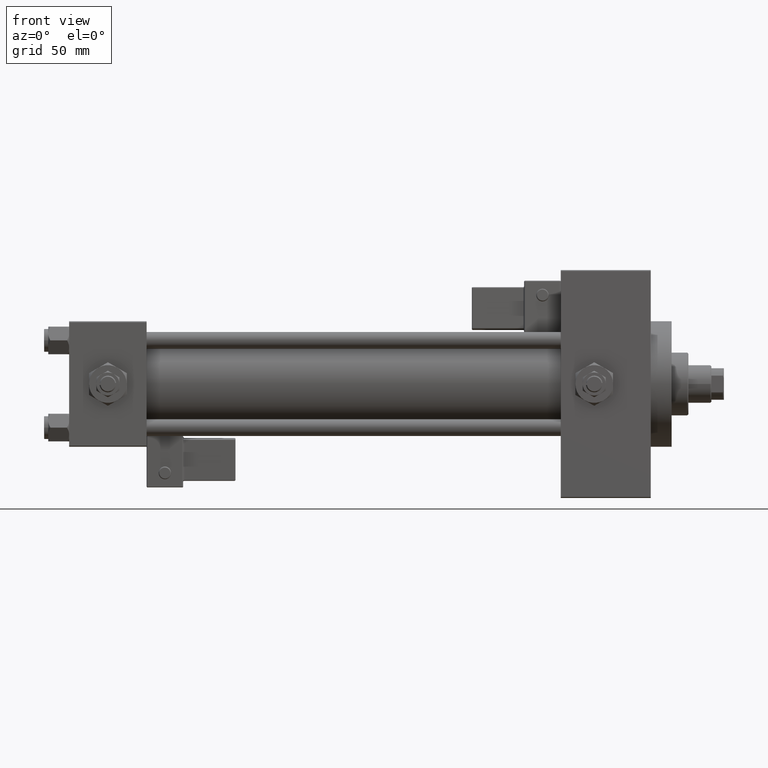
[diagram: clean part render]
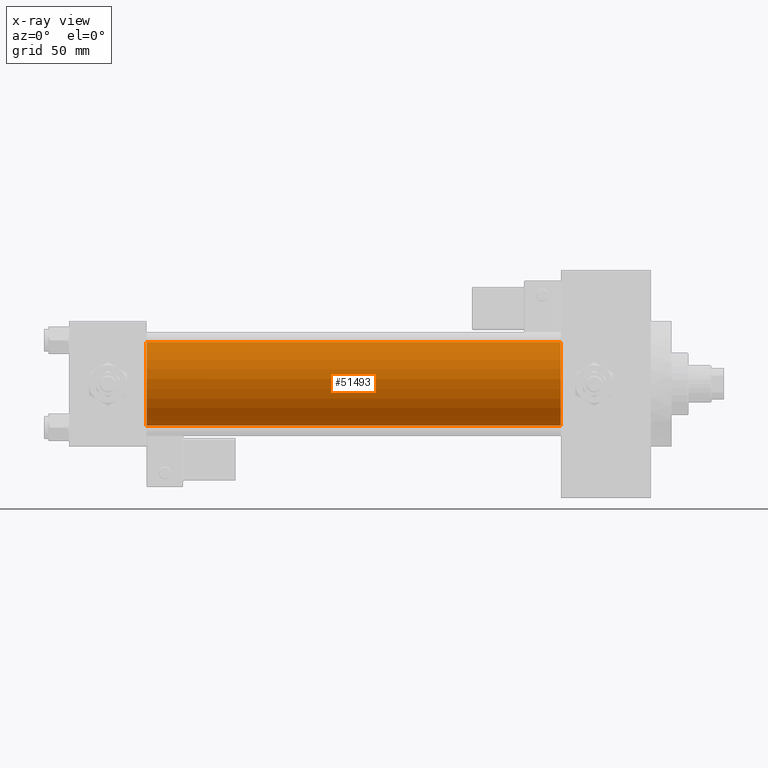
[diagram: x-ray — body ghosted, one internal face saturated and labeled with its STEP entity id]
A machine part, front view, then the same camera in x-ray: the body is ghosted and one INTERNAL B-rep face — a face not visible from any outside direction — is saturated and labeled: STEP entity #51493.
In plain terms, the highlighted cylindrical surface (partial cylindrical patch) has radius 20 mm, axis along (-1, -0, -0).
Its self-contained STEP definition (entity closure, byte-faithful):
#32 = VERTEX_POINT ( 'NONE', #4013 ) ;
#1089 = DIRECTION ( 'NONE',  ( 1.000000000000000000, 0.000000000000000000, 0.000000000000000000 ) ) ;
#1090 = VERTEX_POINT ( 'NONE', #40598 ) ;
#3659 = FACE_OUTER_BOUND ( 'NONE', #30290, .T. ) ;
#4013 = CARTESIAN_POINT ( 'NONE',  ( 235.0000000000000284, -1.527916156705042519E-16, -20.00000000000000000 ) ) ;
#4306 = DIRECTION ( 'NONE',  ( 1.000000000000000000, 0.000000000000000000, 0.000000000000000000 ) ) ;
#6747 = VERTEX_POINT ( 'NONE', #36054 ) ;
#11464 = DIRECTION ( 'NONE',  ( 0.000000000000000000, 0.000000000000000000, 1.000000000000000000 ) ) ;
#13388 = AXIS2_PLACEMENT_3D ( 'NONE', #27844, #16149, #11464 ) ;
#13917 = CIRCLE ( 'NONE', #47138, 20.00000000000000000 ) ;
#14411 = EDGE_CURVE ( 'NONE', #6747, #1090, #14683, .T. ) ;
#14683 = LINE ( 'NONE', #39405, #42393 ) ;
#15228 = VECTOR ( 'NONE', #25204, 1000.000000000000000 ) ;
#16149 = DIRECTION ( 'NONE',  ( -1.000000000000000000, -0.000000000000000000, -0.000000000000000000 ) ) ;
#16549 = CARTESIAN_POINT ( 'NONE',  ( 37.00000000000000000, -2.602085213965210642E-15, 0.000000000000000000 ) ) ;
#18160 = CIRCLE ( 'NONE', #47251, 20.00000000000000000 ) ;
#20869 = CARTESIAN_POINT ( 'NONE',  ( 235.0000000000000284, -2.602085213965210642E-15, 0.000000000000000000 ) ) ;
#21314 = ORIENTED_EDGE ( 'NONE', *, *, #30476, .T. ) ;
#21555 = CARTESIAN_POINT ( 'NONE',  ( 235.0000000000000284, -1.527916156705042519E-16, -20.00000000000000000 ) ) ;
#23581 = DIRECTION ( 'NONE',  ( 0.000000000000000000, 0.000000000000000000, -1.000000000000000000 ) ) ;
#25204 = DIRECTION ( 'NONE',  ( -1.000000000000000000, -0.000000000000000000, -0.000000000000000000 ) ) ;
#25296 = DIRECTION ( 'NONE',  ( 0.000000000000000000, 0.000000000000000000, -1.000000000000000000 ) ) ;
#25734 = CARTESIAN_POINT ( 'NONE',  ( 37.00000000000000000, -1.527916156705042519E-16, -20.00000000000000000 ) ) ;
#27844 = CARTESIAN_POINT ( 'NONE',  ( 235.0000000000000284, -2.602085213965210642E-15, 0.000000000000000000 ) ) ;
#30290 = EDGE_LOOP ( 'NONE', ( #38421, #21314, #38495, #32779 ) ) ;
#30476 = EDGE_CURVE ( 'NONE', #32, #38957, #37161, .T. ) ;
#32779 = ORIENTED_EDGE ( 'NONE', *, *, #14411, .F. ) ;
#36054 = CARTESIAN_POINT ( 'NONE',  ( 235.0000000000000284, -2.602085213965210642E-15, 20.00000000000000000 ) ) ;
#37161 = LINE ( 'NONE', #21555, #15228 ) ;
#38421 = ORIENTED_EDGE ( 'NONE', *, *, #42375, .T. ) ;
#38495 = ORIENTED_EDGE ( 'NONE', *, *, #47774, .F. ) ;
#38957 = VERTEX_POINT ( 'NONE', #25734 ) ;
#39035 = CYLINDRICAL_SURFACE ( 'NONE', #13388, 20.00000000000000000 ) ;
#39139 = DIRECTION ( 'NONE',  ( -1.000000000000000000, -0.000000000000000000, -0.000000000000000000 ) ) ;
#39405 = CARTESIAN_POINT ( 'NONE',  ( 235.0000000000000284, -2.602085213965210642E-15, 20.00000000000000000 ) ) ;
#40598 = CARTESIAN_POINT ( 'NONE',  ( 37.00000000000000000, -2.602085213965210642E-15, 20.00000000000000000 ) ) ;
#42375 = EDGE_CURVE ( 'NONE', #6747, #32, #13917, .T. ) ;
#42393 = VECTOR ( 'NONE', #39139, 1000.000000000000000 ) ;
#47138 = AXIS2_PLACEMENT_3D ( 'NONE', #20869, #1089, #25296 ) ;
#47251 = AXIS2_PLACEMENT_3D ( 'NONE', #16549, #4306, #23581 ) ;
#47774 = EDGE_CURVE ( 'NONE', #1090, #38957, #18160, .T. ) ;
#51493 = ADVANCED_FACE ( 'NONE', ( #3659 ), #39035, .F. ) ;